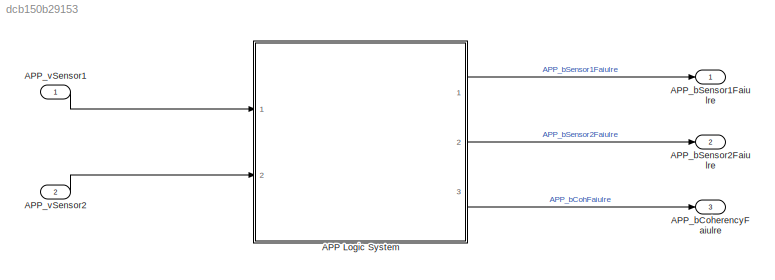
MODEL slx_dcb150b29153
KIND model
CONFIG AbsTol = auto
CONFIG EnableMultiTasking = off
CONFIG FixedStep = auto
CONFIG MaxStep = auto
CONFIG MinStep = auto
CONFIG RelTol = 1e-3
CONFIG SampleTimeConstraint = Unconstrained
CONFIG SolverName = FixedStepDiscrete
CONFIG StartTime = 0.0
CONFIG StopTime = 10.0
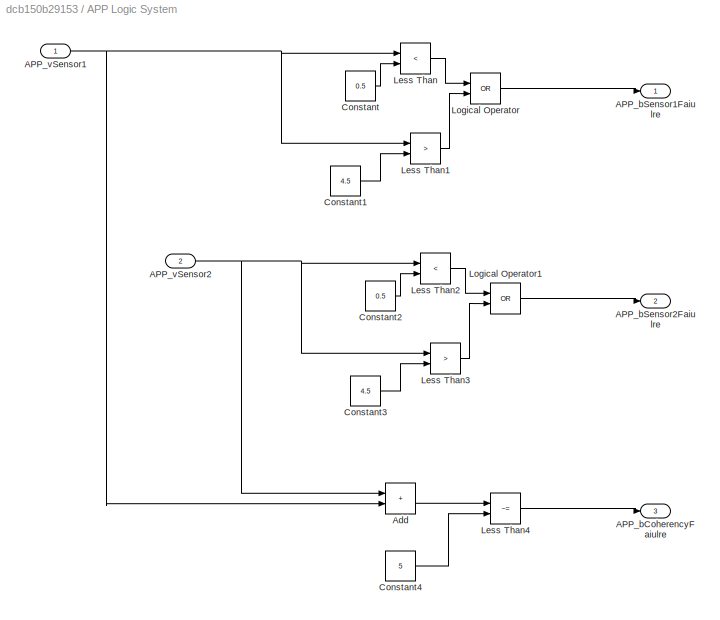
BLOCK [SubSystem] APP Logic System
  Ports = [2, 3]
  RTWSystemCode = Nonreusable function
  RequestExecContextInheritance = off
  TreatAsAtomicUnit = on
BLOCK [Outport] APP Logic System/APP_bCoherencyFaiulre
  Port = 3
BLOCK [Outport] APP Logic System/APP_bSensor1Faiulre
BLOCK [Outport] APP Logic System/APP_bSensor2Faiulre
  Port = 2
BLOCK [Inport] APP Logic System/APP_vSensor1
BLOCK [Inport] APP Logic System/APP_vSensor2
  Port = 2
BLOCK [Sum] APP Logic System/Add
  IconShape = rectangular
  Ports = [2, 1]
BLOCK [Constant] APP Logic System/Constant
  Value = 0.5
BLOCK [Constant] APP Logic System/Constant1
  Value = 4.5
BLOCK [Constant] APP Logic System/Constant2
  Value = 0.5
BLOCK [Constant] APP Logic System/Constant3
  Value = 4.5
BLOCK [Constant] APP Logic System/Constant4
  Value = 5
BLOCK [RelationalOperator] APP Logic System/Less Than
  InputSameDT = off
  Operator = <
  OutDataTypeStr = boolean
  Ports = [2, 1]
  RndMeth = Simplest
BLOCK [RelationalOperator] APP Logic System/Less Than1
  InputSameDT = off
  Operator = >
  OutDataTypeStr = boolean
  Ports = [2, 1]
  RndMeth = Simplest
BLOCK [RelationalOperator] APP Logic System/Less Than2
  InputSameDT = off
  Operator = <
  OutDataTypeStr = boolean
  Ports = [2, 1]
  RndMeth = Simplest
BLOCK [RelationalOperator] APP Logic System/Less Than3
  InputSameDT = off
  Operator = >
  OutDataTypeStr = boolean
  Ports = [2, 1]
  RndMeth = Simplest
BLOCK [RelationalOperator] APP Logic System/Less Than4
  InputSameDT = off
  Operator = ~=
  OutDataTypeStr = boolean
  Ports = [2, 1]
  RndMeth = Simplest
BLOCK [Logic] APP Logic System/Logical Operator
  AllPortsSameDT = off
  Operator = OR
  OutDataTypeStr = boolean
  Ports = [2, 1]
BLOCK [Logic] APP Logic System/Logical Operator1
  AllPortsSameDT = off
  Operator = OR
  OutDataTypeStr = boolean
  Ports = [2, 1]
BLOCK [Outport] APP_bCoherencyFaiulre
  Port = 3
BLOCK [Outport] APP_bSensor1Faiulre
BLOCK [Outport] APP_bSensor2Faiulre
  Port = 2
BLOCK [Inport] APP_vSensor1
BLOCK [Inport] APP_vSensor2
  Port = 2
NET APP Logic System/APP_vSensor1:1 -> APP Logic System/Add:2, APP Logic System/Less Than1:1, APP Logic System/Less Than:1
NET APP Logic System/APP_vSensor2:1 -> APP Logic System/Add:1, APP Logic System/Less Than2:1, APP Logic System/Less Than3:1
LINE APP Logic System/Add:1 -> APP Logic System/Less Than4:1
LINE APP Logic System/Constant1:1 -> APP Logic System/Less Than1:2
LINE APP Logic System/Constant2:1 -> APP Logic System/Less Than2:2
LINE APP Logic System/Constant3:1 -> APP Logic System/Less Than3:2
LINE APP Logic System/Constant4:1 -> APP Logic System/Less Than4:2
LINE APP Logic System/Constant:1 -> APP Logic System/Less Than:2
LINE APP Logic System/Less Than1:1 -> APP Logic System/Logical Operator:2
LINE APP Logic System/Less Than2:1 -> APP Logic System/Logical Operator1:1
LINE APP Logic System/Less Than3:1 -> APP Logic System/Logical Operator1:2
LINE APP Logic System/Less Than4:1 -> APP Logic System/APP_bCoherencyFaiulre:1
LINE APP Logic System/Less Than:1 -> APP Logic System/Logical Operator:1
LINE APP Logic System/Logical Operator1:1 -> APP Logic System/APP_bSensor2Faiulre:1
LINE APP Logic System/Logical Operator:1 -> APP Logic System/APP_bSensor1Faiulre:1
LINE APP Logic System:1 -> APP_bSensor1Faiulre:1
LINE APP Logic System:2 -> APP_bSensor2Faiulre:1
LINE APP Logic System:3 -> APP_bCoherencyFaiulre:1
LINE APP_vSensor1:1 -> APP Logic System:1
LINE APP_vSensor2:1 -> APP Logic System:2
note: NET lines group one-source signal fan-out (src -> all destinations, sorted); 1:1 wires keep LINE
